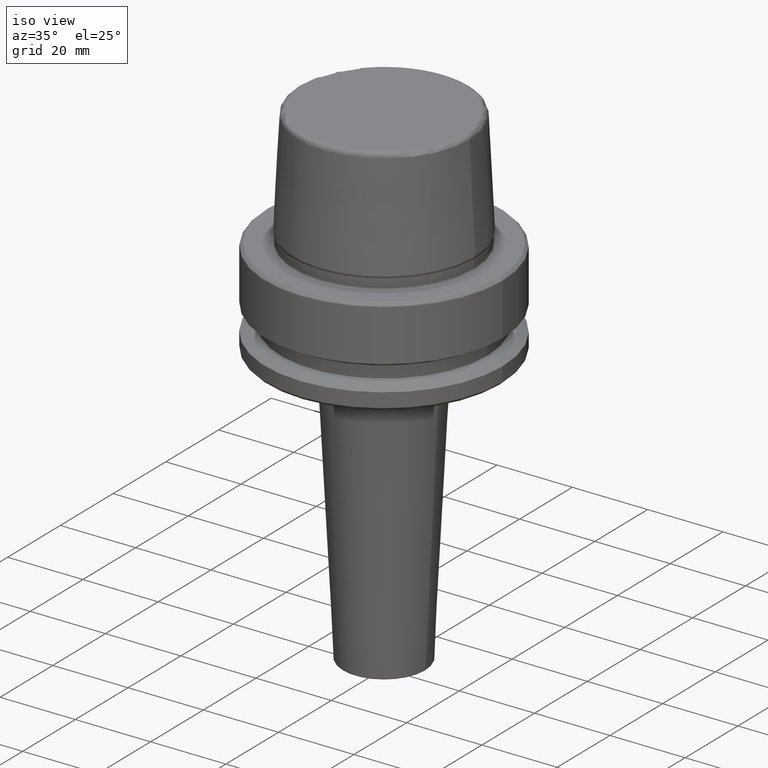
[diagram: clean part render]
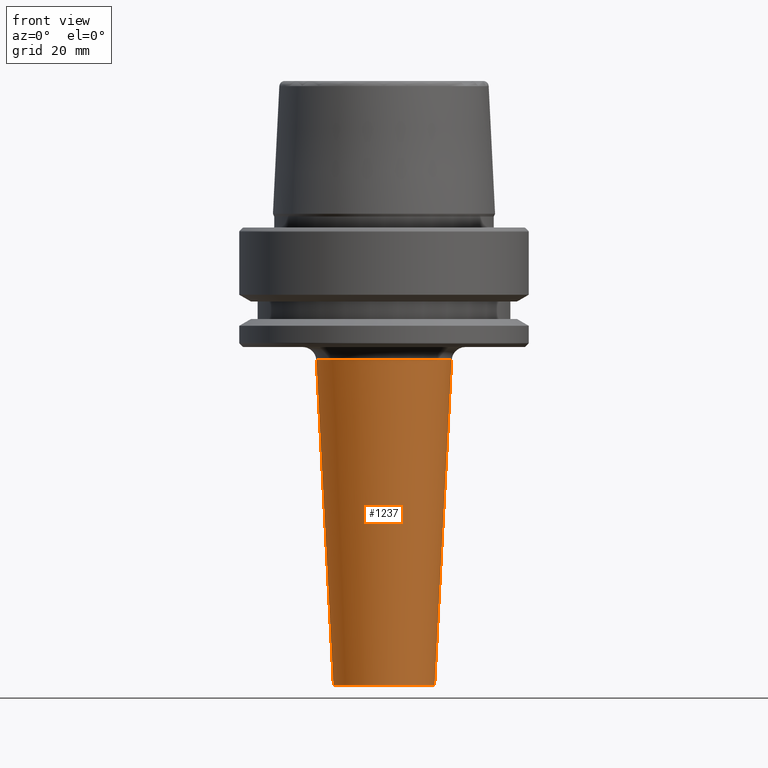
[diagram: tour spotlight — one face highlighted and labeled with its STEP entity id]
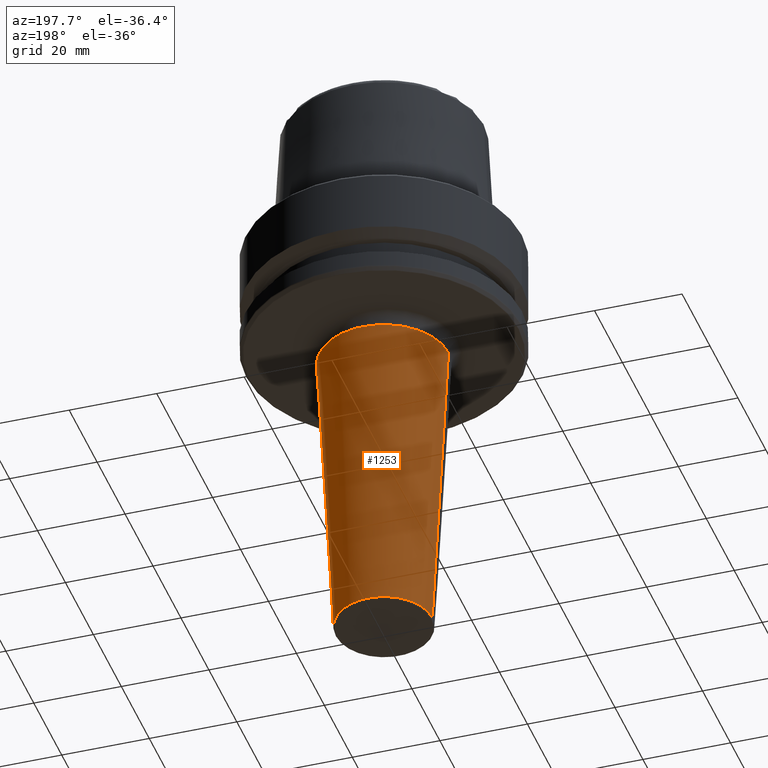
[diagram: tour spotlight — one face highlighted and labeled with its STEP entity id]
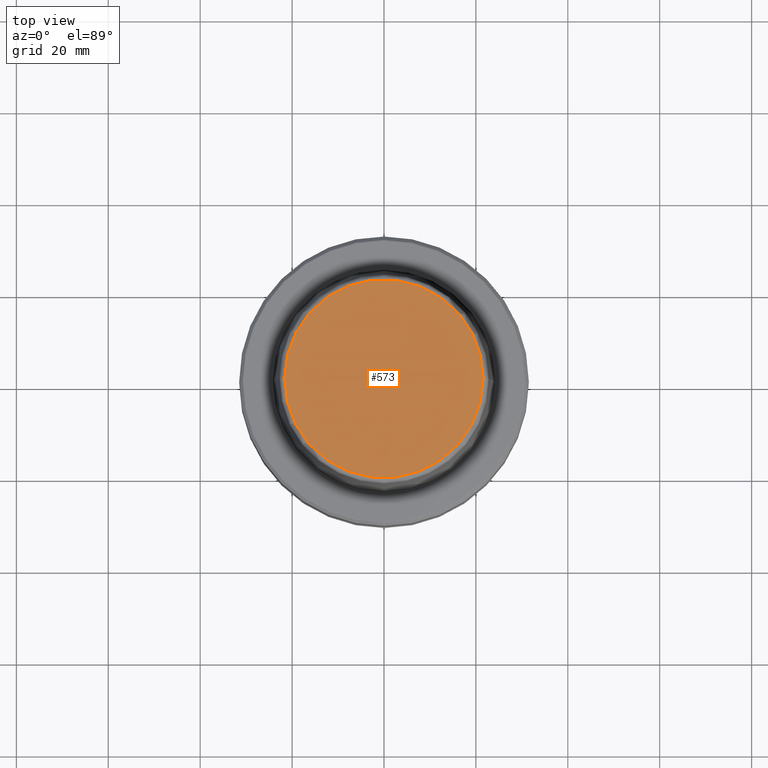
[diagram: tour spotlight — one face highlighted and labeled with its STEP entity id]
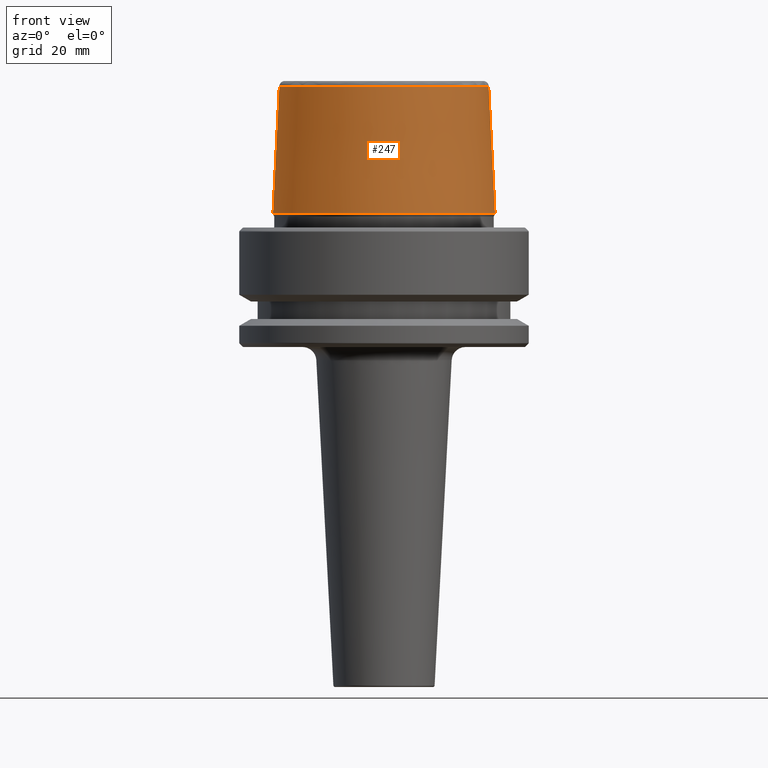
[diagram: tour spotlight — one face highlighted and labeled with its STEP entity id]
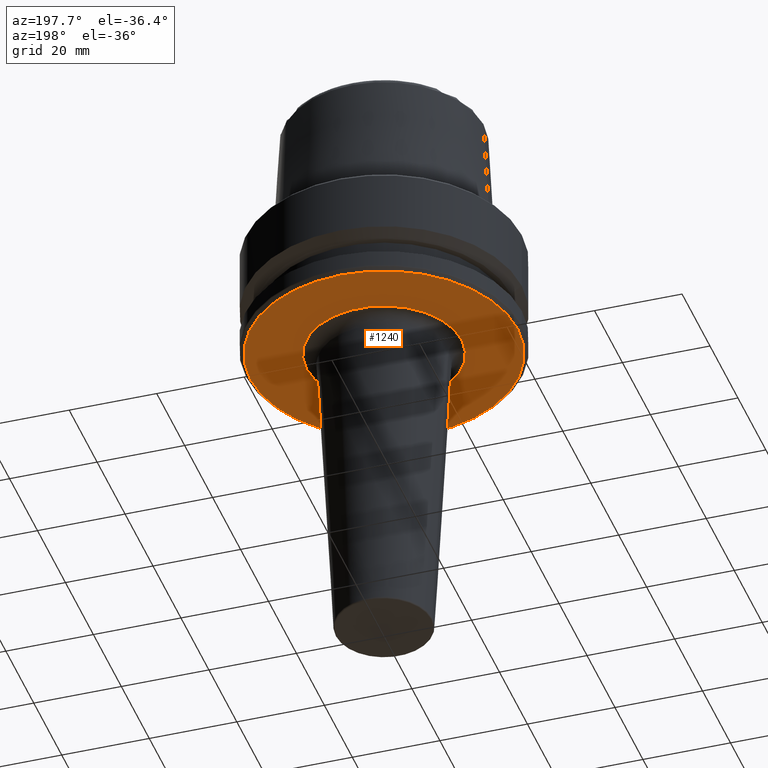
[diagram: tour spotlight — one face highlighted and labeled with its STEP entity id]
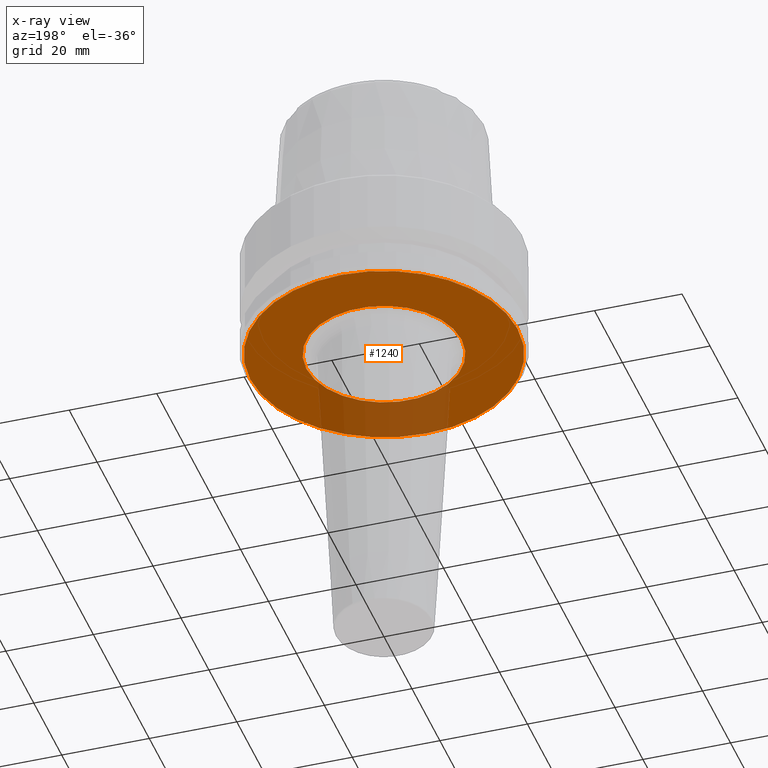
[diagram: x-ray of the same camera — body ghosted, this tour face saturated]
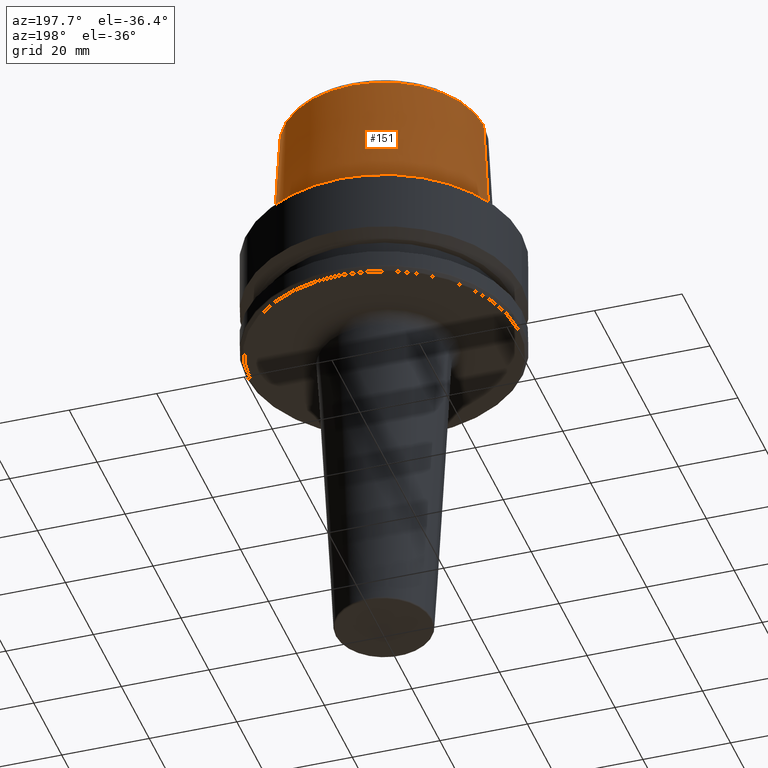
[diagram: tour spotlight — one face highlighted and labeled with its STEP entity id]
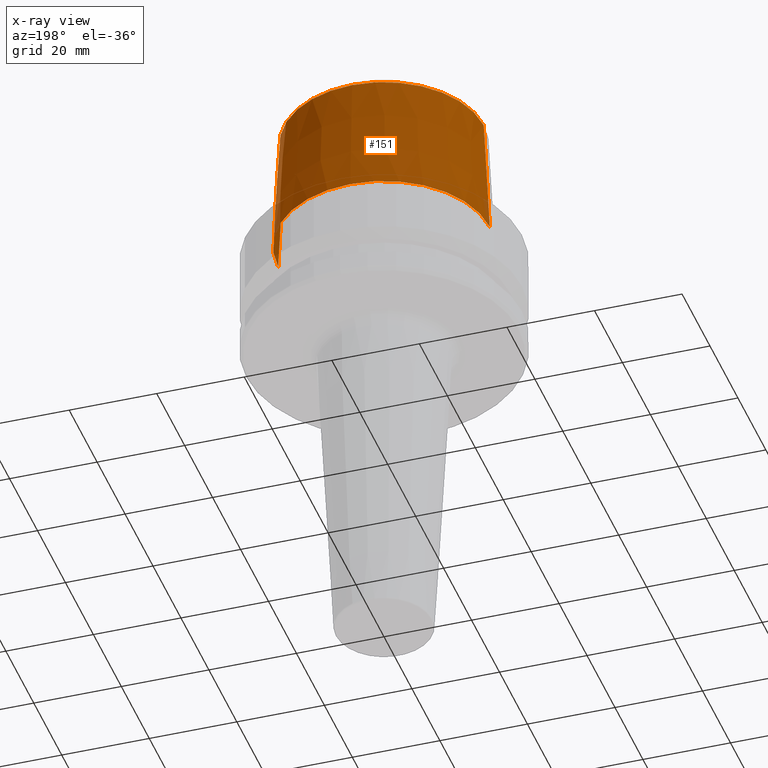
[diagram: x-ray of the same camera — body ghosted, this tour face saturated]
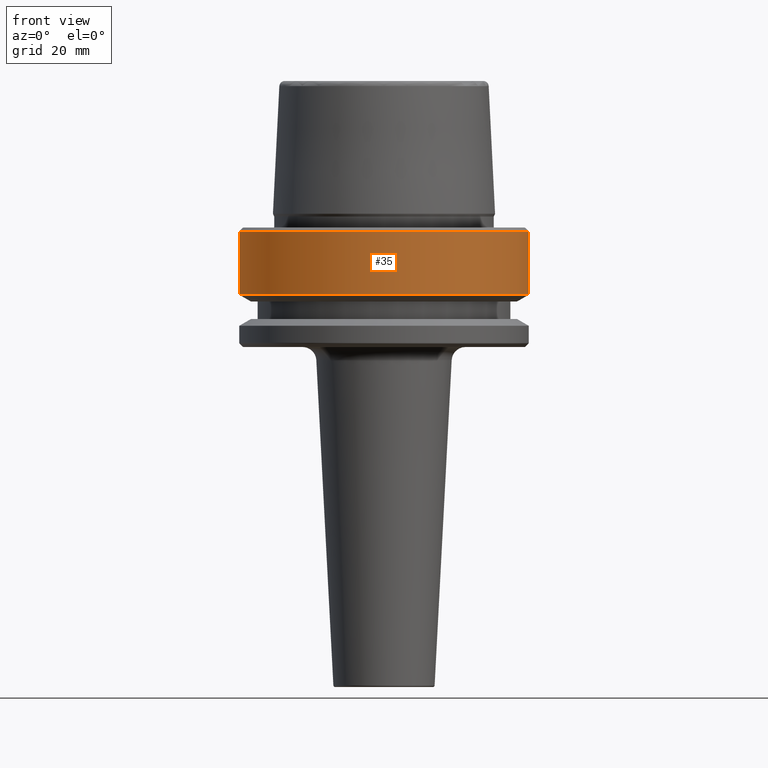
[diagram: tour spotlight — one face highlighted and labeled with its STEP entity id]
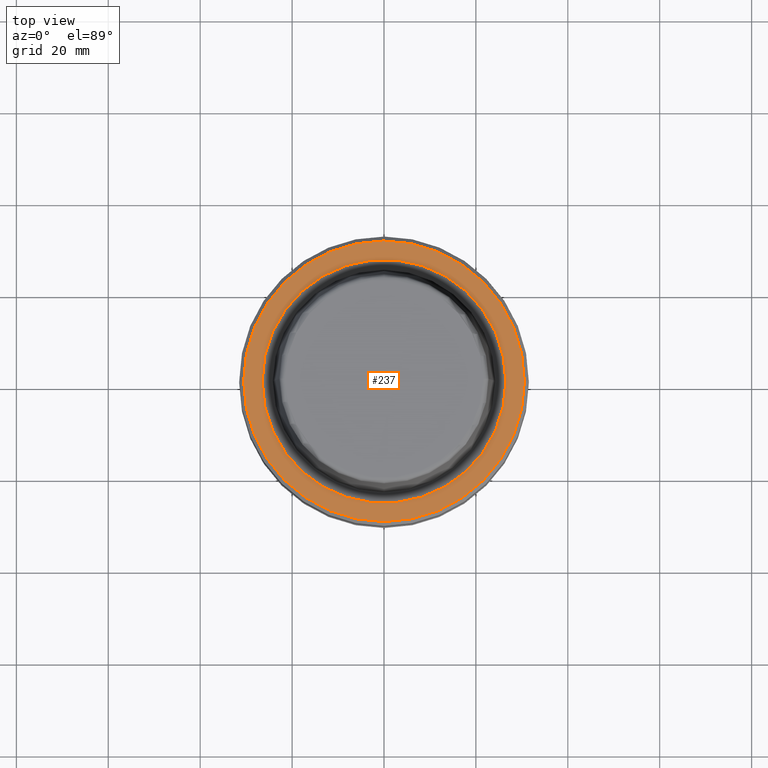
[diagram: tour spotlight — one face highlighted and labeled with its STEP entity id]
A machine part: a face-by-face anatomy tour. The part has 46 B-rep faces; the first image is the clean iso view, then the 8 largest visible faces are spotlighted one at a time (largest first), each with its STEP entity span.

Face 1 — front view, entity #1237. In plain terms, the highlighted conical surface has half-angle 3 deg.
Definition (entity closure, byte-faithful):
#3 = LINE ( 'NONE', #561, #451 ) ;
#9 = EDGE_LOOP ( 'NONE', ( #259, #390, #586, #384 ) ) ;
#24 = CARTESIAN_POINT ( 'NONE',  ( 0.0000000000000000000, 0.0000000000000000000, -99.62093438249719700 ) ) ;
#27 = CARTESIAN_POINT ( 'NONE',  ( 0.0000000000000000000, 0.0000000000000000000, -99.62093438249719700 ) ) ;
#57 = DIRECTION ( 'NONE',  ( 0.0000000000000000000, 0.0000000000000000000, -1.000000000000000000 ) ) ;
#180 = VECTOR ( 'NONE', #233, 1000.000000000000100 ) ;
#197 = DIRECTION ( 'NONE',  ( -0.0000000000000000000, -0.0000000000000000000, 1.000000000000000000 ) ) ;
#233 = DIRECTION ( 'NONE',  ( 0.05233595624294394600, 0.0000000000000000000, 0.9986295347545739400 ) ) ;
#239 = DIRECTION ( 'NONE',  ( 1.000000000000000000, 0.0000000000000000000, 0.0000000000000000000 ) ) ;
#255 = AXIS2_PLACEMENT_3D ( 'NONE', #27, #890, #1162 ) ;
#259 = ORIENTED_EDGE ( 'NONE', *, *, #306, .F. ) ;
#295 = CARTESIAN_POINT ( 'NONE',  ( 14.72918076282597600, 0.0000000000000000000, -28.84299213127116700 ) ) ;
#306 = EDGE_CURVE ( 'NONE', #1135, #471, #3, .T. ) ;
#332 = CONICAL_SURFACE ( 'NONE', #255, 11.01986598721587800, 0.05235987755982999400 ) ;
#334 = AXIS2_PLACEMENT_3D ( 'NONE', #24, #197, #239 ) ;
#384 = ORIENTED_EDGE ( 'NONE', *, *, #535, .T. ) ;
#390 = ORIENTED_EDGE ( 'NONE', *, *, #995, .T. ) ;
#407 = CARTESIAN_POINT ( 'NONE',  ( 11.01986598721587800, 0.0000000000000000000, -99.62093438249719700 ) ) ;
#419 = DIRECTION ( 'NONE',  ( -0.05233595624294394600, 6.409306129323724000E-018, 0.9986295347545739400 ) ) ;
#424 = CIRCLE ( 'NONE', #617, 14.72918076282597800 ) ;
#451 = VECTOR ( 'NONE', #419, 1000.000000000000100 ) ;
#464 = CARTESIAN_POINT ( 'NONE',  ( 0.0000000000000000000, 0.0000000000000000000, -28.84299213127116700 ) ) ;
#468 = CARTESIAN_POINT ( 'NONE',  ( -14.72918076282597600, 1.803804407525760100E-015, -28.84299213127116700 ) ) ;
#471 = VERTEX_POINT ( 'NONE', #468 ) ;
#524 = FACE_OUTER_BOUND ( 'NONE', #9, .T. ) ;
#535 = EDGE_CURVE ( 'NONE', #1074, #471, #424, .T. ) ;
#561 = CARTESIAN_POINT ( 'NONE',  ( -11.01986598721587800, 1.349544360827671300E-015, -99.62093438249719700 ) ) ;
#586 = ORIENTED_EDGE ( 'NONE', *, *, #961, .T. ) ;
#608 = CARTESIAN_POINT ( 'NONE',  ( -11.01986598721587800, 1.349544360827671300E-015, -99.62093438249719700 ) ) ;
#617 = AXIS2_PLACEMENT_3D ( 'NONE', #464, #57, #648 ) ;
#648 = DIRECTION ( 'NONE',  ( 1.000000000000000000, 0.0000000000000000000, 0.0000000000000000000 ) ) ;
#818 = CIRCLE ( 'NONE', #334, 11.01986598721587800 ) ;
#890 = DIRECTION ( 'NONE',  ( -0.0000000000000000000, -0.0000000000000000000, 1.000000000000000000 ) ) ;
#961 = EDGE_CURVE ( 'NONE', #1243, #1074, #1006, .T. ) ;
#995 = EDGE_CURVE ( 'NONE', #1135, #1243, #818, .T. ) ;
#1006 = LINE ( 'NONE', #1045, #180 ) ;
#1045 = CARTESIAN_POINT ( 'NONE',  ( 11.01986598721587800, 0.0000000000000000000, -99.62093438249719700 ) ) ;
#1074 = VERTEX_POINT ( 'NONE', #295 ) ;
#1135 = VERTEX_POINT ( 'NONE', #608 ) ;
#1162 = DIRECTION ( 'NONE',  ( 1.000000000000000000, 0.0000000000000000000, 0.0000000000000000000 ) ) ;
#1237 = ADVANCED_FACE ( 'NONE', ( #524 ), #332, .T. ) ;
#1243 = VERTEX_POINT ( 'NONE', #407 ) ;

Face 2 — auxiliary view, entity #1253. In plain terms, the highlighted conical surface has half-angle 3 deg.
Definition (entity closure, byte-faithful):
#3 = LINE ( 'NONE', #561, #451 ) ;
#48 = EDGE_CURVE ( 'NONE', #471, #1074, #566, .T. ) ;
#93 = DIRECTION ( 'NONE',  ( 1.000000000000000000, 0.0000000000000000000, 0.0000000000000000000 ) ) ;
#180 = VECTOR ( 'NONE', #233, 1000.000000000000100 ) ;
#233 = DIRECTION ( 'NONE',  ( 0.05233595624294394600, 0.0000000000000000000, 0.9986295347545739400 ) ) ;
#295 = CARTESIAN_POINT ( 'NONE',  ( 14.72918076282597600, 0.0000000000000000000, -28.84299213127116700 ) ) ;
#306 = EDGE_CURVE ( 'NONE', #1135, #471, #3, .T. ) ;
#320 = DIRECTION ( 'NONE',  ( 1.000000000000000000, 0.0000000000000000000, 0.0000000000000000000 ) ) ;
#365 = CIRCLE ( 'NONE', #665, 11.01986598721587800 ) ;
#373 = DIRECTION ( 'NONE',  ( 1.000000000000000000, 0.0000000000000000000, 0.0000000000000000000 ) ) ;
#387 = EDGE_CURVE ( 'NONE', #1243, #1135, #365, .T. ) ;
#400 = CARTESIAN_POINT ( 'NONE',  ( 0.0000000000000000000, 0.0000000000000000000, -99.62093438249719700 ) ) ;
#407 = CARTESIAN_POINT ( 'NONE',  ( 11.01986598721587800, 0.0000000000000000000, -99.62093438249719700 ) ) ;
#411 = DIRECTION ( 'NONE',  ( -0.0000000000000000000, -0.0000000000000000000, 1.000000000000000000 ) ) ;
#419 = DIRECTION ( 'NONE',  ( -0.05233595624294394600, 6.409306129323724000E-018, 0.9986295347545739400 ) ) ;
#436 = ORIENTED_EDGE ( 'NONE', *, *, #48, .T. ) ;
#451 = VECTOR ( 'NONE', #419, 1000.000000000000100 ) ;
#468 = CARTESIAN_POINT ( 'NONE',  ( -14.72918076282597600, 1.803804407525760100E-015, -28.84299213127116700 ) ) ;
#471 = VERTEX_POINT ( 'NONE', #468 ) ;
#497 = ORIENTED_EDGE ( 'NONE', *, *, #306, .T. ) ;
#508 = AXIS2_PLACEMENT_3D ( 'NONE', #596, #934, #373 ) ;
#561 = CARTESIAN_POINT ( 'NONE',  ( -11.01986598721587800, 1.349544360827671300E-015, -99.62093438249719700 ) ) ;
#566 = CIRCLE ( 'NONE', #508, 14.72918076282597800 ) ;
#596 = CARTESIAN_POINT ( 'NONE',  ( 0.0000000000000000000, 0.0000000000000000000, -28.84299213127116700 ) ) ;
#608 = CARTESIAN_POINT ( 'NONE',  ( -11.01986598721587800, 1.349544360827671300E-015, -99.62093438249719700 ) ) ;
#623 = CARTESIAN_POINT ( 'NONE',  ( 0.0000000000000000000, 0.0000000000000000000, -99.62093438249719700 ) ) ;
#665 = AXIS2_PLACEMENT_3D ( 'NONE', #623, #771, #93 ) ;
#771 = DIRECTION ( 'NONE',  ( -0.0000000000000000000, -0.0000000000000000000, 1.000000000000000000 ) ) ;
#845 = ORIENTED_EDGE ( 'NONE', *, *, #387, .T. ) ;
#934 = DIRECTION ( 'NONE',  ( 0.0000000000000000000, 0.0000000000000000000, -1.000000000000000000 ) ) ;
#961 = EDGE_CURVE ( 'NONE', #1243, #1074, #1006, .T. ) ;
#980 = CONICAL_SURFACE ( 'NONE', #1238, 11.01986598721587800, 0.05235987755982999400 ) ;
#1006 = LINE ( 'NONE', #1045, #180 ) ;
#1045 = CARTESIAN_POINT ( 'NONE',  ( 11.01986598721587800, 0.0000000000000000000, -99.62093438249719700 ) ) ;
#1074 = VERTEX_POINT ( 'NONE', #295 ) ;
#1135 = VERTEX_POINT ( 'NONE', #608 ) ;
#1137 = EDGE_LOOP ( 'NONE', ( #845, #497, #436, #1169 ) ) ;
#1169 = ORIENTED_EDGE ( 'NONE', *, *, #961, .F. ) ;
#1175 = FACE_OUTER_BOUND ( 'NONE', #1137, .T. ) ;
#1238 = AXIS2_PLACEMENT_3D ( 'NONE', #400, #411, #320 ) ;
#1243 = VERTEX_POINT ( 'NONE', #407 ) ;
#1253 = ADVANCED_FACE ( 'NONE', ( #1175 ), #980, .T. ) ;

Face 3 — top view, entity #573. In plain terms, the highlighted planar face has unit normal (0, 0, -1).
Definition (entity closure, byte-faithful):
#68 = DIRECTION ( 'NONE',  ( 0.0000000000000000000, 0.0000000000000000000, -1.000000000000000000 ) ) ;
#184 = AXIS2_PLACEMENT_3D ( 'NONE', #678, #844, #1078 ) ;
#217 = AXIS2_PLACEMENT_3D ( 'NONE', #758, #68, #856 ) ;
#228 = CARTESIAN_POINT ( 'NONE',  ( 21.58108272732117100, 0.0000000000000000000, 31.89999999999999900 ) ) ;
#322 = AXIS2_PLACEMENT_3D ( 'NONE', #556, #659, #1224 ) ;
#327 = ORIENTED_EDGE ( 'NONE', *, *, #1141, .T. ) ;
#377 = VERTEX_POINT ( 'NONE', #228 ) ;
#488 = CIRCLE ( 'NONE', #184, 21.58108272732117100 ) ;
#556 = CARTESIAN_POINT ( 'NONE',  ( 0.0000000000000000000, 0.0000000000000000000, 31.89999999999999900 ) ) ;
#573 = ADVANCED_FACE ( 'NONE', ( #1246 ), #1223, .F. ) ;
#602 = EDGE_CURVE ( 'NONE', #377, #1071, #813, .T. ) ;
#659 = DIRECTION ( 'NONE',  ( -0.0000000000000000000, -0.0000000000000000000, 1.000000000000000000 ) ) ;
#673 = EDGE_LOOP ( 'NONE', ( #1171, #327 ) ) ;
#678 = CARTESIAN_POINT ( 'NONE',  ( 0.0000000000000000000, 0.0000000000000000000, 31.89999999999999900 ) ) ;
#758 = CARTESIAN_POINT ( 'NONE',  ( 0.0000000000000000000, 0.0000000000000000000, 31.89999999999999900 ) ) ;
#813 = CIRCLE ( 'NONE', #322, 21.58108272732117100 ) ;
#844 = DIRECTION ( 'NONE',  ( -0.0000000000000000000, -0.0000000000000000000, 1.000000000000000000 ) ) ;
#856 = DIRECTION ( 'NONE',  ( -1.000000000000000000, 0.0000000000000000000, -0.0000000000000000000 ) ) ;
#1071 = VERTEX_POINT ( 'NONE', #1114 ) ;
#1078 = DIRECTION ( 'NONE',  ( 1.000000000000000000, 0.0000000000000000000, 0.0000000000000000000 ) ) ;
#1114 = CARTESIAN_POINT ( 'NONE',  ( -21.58108272732117100, 2.716307157494421400E-015, 31.89999999999999900 ) ) ;
#1141 = EDGE_CURVE ( 'NONE', #1071, #377, #488, .T. ) ;
#1171 = ORIENTED_EDGE ( 'NONE', *, *, #602, .T. ) ;
#1223 = PLANE ( 'NONE',  #217 ) ;
#1224 = DIRECTION ( 'NONE',  ( 1.000000000000000000, 0.0000000000000000000, 0.0000000000000000000 ) ) ;
#1246 = FACE_OUTER_BOUND ( 'NONE', #673, .T. ) ;

Face 4 — front view, entity #247. In plain terms, the highlighted conical surface has half-angle 2.868 deg.
Definition (entity closure, byte-faithful):
#18 = DIRECTION ( 'NONE',  ( -0.05003611051310812000, 0.0000000000000000000, -0.9987474093306675200 ) ) ;
#117 = ORIENTED_EDGE ( 'NONE', *, *, #426, .T. ) ;
#141 = DIRECTION ( 'NONE',  ( 1.000000000000000000, 0.0000000000000000000, 0.0000000000000000000 ) ) ;
#222 = LINE ( 'NONE', #1075, #371 ) ;
#236 = DIRECTION ( 'NONE',  ( 1.000000000000000000, 0.0000000000000000000, 0.0000000000000000000 ) ) ;
#242 = CARTESIAN_POINT ( 'NONE',  ( -22.77957961851797100, 0.0000000000000000000, 30.76004333261571900 ) ) ;
#247 = ADVANCED_FACE ( 'NONE', ( #988 ), #1050, .T. ) ;
#257 = VERTEX_POINT ( 'NONE', #652 ) ;
#292 = DIRECTION ( 'NONE',  ( -1.000000000000000000, 0.0000000000000000000, 0.0000000000000000000 ) ) ;
#310 = VERTEX_POINT ( 'NONE', #242 ) ;
#346 = AXIS2_PLACEMENT_3D ( 'NONE', #603, #1164, #141 ) ;
#364 = DIRECTION ( 'NONE',  ( -0.0000000000000000000, -0.0000000000000000000, 1.000000000000000000 ) ) ;
#371 = VECTOR ( 'NONE', #997, 1000.000000000000200 ) ;
#379 = EDGE_CURVE ( 'NONE', #310, #257, #974, .T. ) ;
#393 = ORIENTED_EDGE ( 'NONE', *, *, #379, .F. ) ;
#408 = CIRCLE ( 'NONE', #346, 24.17032625081241900 ) ;
#426 = EDGE_CURVE ( 'NONE', #310, #1153, #459, .T. ) ;
#452 = EDGE_LOOP ( 'NONE', ( #1188, #393, #117, #1139 ) ) ;
#459 = LINE ( 'NONE', #503, #1086 ) ;
#467 = VERTEX_POINT ( 'NONE', #851 ) ;
#495 = CARTESIAN_POINT ( 'NONE',  ( -24.17032625081241900, 2.960011267740467600E-015, 3.000000000000002700 ) ) ;
#503 = CARTESIAN_POINT ( 'NONE',  ( -24.17032625081241900, 0.0000000000000000000, 3.000000000000002700 ) ) ;
#534 = CARTESIAN_POINT ( 'NONE',  ( 0.0000000000000000000, 0.0000000000000000000, 30.76004333261571900 ) ) ;
#572 = CARTESIAN_POINT ( 'NONE',  ( 0.0000000000000000000, 0.0000000000000000000, 3.000000000000002700 ) ) ;
#603 = CARTESIAN_POINT ( 'NONE',  ( 0.0000000000000000000, 0.0000000000000000000, 3.000000000000002700 ) ) ;
#604 = AXIS2_PLACEMENT_3D ( 'NONE', #534, #364, #236 ) ;
#647 = EDGE_CURVE ( 'NONE', #1153, #467, #408, .T. ) ;
#652 = CARTESIAN_POINT ( 'NONE',  ( 22.77957961851797100, 2.874852597157249900E-015, 30.76004333261571900 ) ) ;
#851 = CARTESIAN_POINT ( 'NONE',  ( 24.17032625081241900, 0.0000000000000000000, 3.000000000000002700 ) ) ;
#865 = EDGE_CURVE ( 'NONE', #257, #467, #222, .T. ) ;
#866 = AXIS2_PLACEMENT_3D ( 'NONE', #572, #1183, #292 ) ;
#974 = CIRCLE ( 'NONE', #604, 22.77957961851797100 ) ;
#988 = FACE_OUTER_BOUND ( 'NONE', #452, .T. ) ;
#997 = DIRECTION ( 'NONE',  ( 0.05003611051310812000, 6.127656258166108900E-018, -0.9987474093306675200 ) ) ;
#1050 = CONICAL_SURFACE ( 'NONE', #866, 24.17032625081241900, 0.05005701257456005000 ) ;
#1075 = CARTESIAN_POINT ( 'NONE',  ( 24.17032625081241900, 2.960011267740467600E-015, 3.000000000000002700 ) ) ;
#1086 = VECTOR ( 'NONE', #18, 1000.000000000000200 ) ;
#1139 = ORIENTED_EDGE ( 'NONE', *, *, #647, .T. ) ;
#1153 = VERTEX_POINT ( 'NONE', #495 ) ;
#1164 = DIRECTION ( 'NONE',  ( -0.0000000000000000000, -0.0000000000000000000, 1.000000000000000000 ) ) ;
#1183 = DIRECTION ( 'NONE',  ( 0.0000000000000000000, 0.0000000000000000000, -1.000000000000000000 ) ) ;
#1188 = ORIENTED_EDGE ( 'NONE', *, *, #865, .F. ) ;

Face 5 — auxiliary view, entity #1240. An x-ray twin of the same camera follows (body ghosted, this face saturated) — the face is partly hidden behind the body. In plain terms, the highlighted planar face has unit normal (0, -0, 1).
Definition (entity closure, byte-faithful):
#55 = FACE_BOUND ( 'NONE', #329, .T. ) ;
#105 = DIRECTION ( 'NONE',  ( 1.000000000000000000, 0.0000000000000000000, 0.0000000000000000000 ) ) ;
#115 = ORIENTED_EDGE ( 'NONE', *, *, #968, .F. ) ;
#136 = AXIS2_PLACEMENT_3D ( 'NONE', #809, #315, #932 ) ;
#188 = ORIENTED_EDGE ( 'NONE', *, *, #956, .T. ) ;
#208 = CIRCLE ( 'NONE', #765, 17.72506936708969900 ) ;
#283 = ORIENTED_EDGE ( 'NONE', *, *, #773, .F. ) ;
#315 = DIRECTION ( 'NONE',  ( -0.0000000000000000000, -0.0000000000000000000, 1.000000000000000000 ) ) ;
#329 = EDGE_LOOP ( 'NONE', ( #188, #687 ) ) ;
#341 = DIRECTION ( 'NONE',  ( 1.000000000000000000, 0.0000000000000000000, 0.0000000000000000000 ) ) ;
#403 = VERTEX_POINT ( 'NONE', #677 ) ;
#438 = VERTEX_POINT ( 'NONE', #680 ) ;
#517 = CARTESIAN_POINT ( 'NONE',  ( 0.0000000000000000000, 30.53431457505076800, -26.00000000000000700 ) ) ;
#550 = EDGE_CURVE ( 'NONE', #599, #403, #208, .T. ) ;
#551 = FACE_OUTER_BOUND ( 'NONE', #1152, .T. ) ;
#571 = CARTESIAN_POINT ( 'NONE',  ( -17.72506936708969900, 2.170694946507120400E-015, -26.00000000000000400 ) ) ;
#577 = CARTESIAN_POINT ( 'NONE',  ( 0.0000000000000000000, 0.0000000000000000000, -26.00000000000000700 ) ) ;
#579 = DIRECTION ( 'NONE',  ( -0.0000000000000000000, -0.0000000000000000000, 1.000000000000000000 ) ) ;
#599 = VERTEX_POINT ( 'NONE', #571 ) ;
#633 = VERTEX_POINT ( 'NONE', #1117 ) ;
#677 = CARTESIAN_POINT ( 'NONE',  ( 17.72506936708969900, 0.0000000000000000000, -26.00000000000000400 ) ) ;
#680 = CARTESIAN_POINT ( 'NONE',  ( 30.53431457505076800, 0.0000000000000000000, -26.00000000000001100 ) ) ;
#687 = ORIENTED_EDGE ( 'NONE', *, *, #550, .T. ) ;
#722 = CARTESIAN_POINT ( 'NONE',  ( 0.0000000000000000000, 0.0000000000000000000, -26.00000000000000700 ) ) ;
#743 = DIRECTION ( 'NONE',  ( 0.0000000000000000000, -0.0000000000000000000, 1.000000000000000000 ) ) ;
#752 = DIRECTION ( 'NONE',  ( 1.000000000000000000, 0.0000000000000000000, 0.0000000000000000000 ) ) ;
#765 = AXIS2_PLACEMENT_3D ( 'NONE', #577, #1134, #752 ) ;
#773 = EDGE_CURVE ( 'NONE', #438, #633, #940, .T. ) ;
#798 = AXIS2_PLACEMENT_3D ( 'NONE', #722, #807, #823 ) ;
#803 = CARTESIAN_POINT ( 'NONE',  ( 0.0000000000000000000, 0.0000000000000000000, -26.00000000000001100 ) ) ;
#807 = DIRECTION ( 'NONE',  ( -0.0000000000000000000, -0.0000000000000000000, 1.000000000000000000 ) ) ;
#809 = CARTESIAN_POINT ( 'NONE',  ( 0.0000000000000000000, 0.0000000000000000000, -26.00000000000001100 ) ) ;
#823 = DIRECTION ( 'NONE',  ( 1.000000000000000000, 0.0000000000000000000, 0.0000000000000000000 ) ) ;
#932 = DIRECTION ( 'NONE',  ( 1.000000000000000000, 0.0000000000000000000, 0.0000000000000000000 ) ) ;
#940 = CIRCLE ( 'NONE', #136, 30.53431457505076800 ) ;
#956 = EDGE_CURVE ( 'NONE', #403, #599, #1209, .T. ) ;
#968 = EDGE_CURVE ( 'NONE', #633, #438, #1061, .T. ) ;
#1036 = AXIS2_PLACEMENT_3D ( 'NONE', #517, #743, #105 ) ;
#1061 = CIRCLE ( 'NONE', #1166, 30.53431457505076800 ) ;
#1064 = PLANE ( 'NONE',  #1036 ) ;
#1117 = CARTESIAN_POINT ( 'NONE',  ( -30.53431457505076800, 3.756694181974139400E-015, -26.00000000000001100 ) ) ;
#1134 = DIRECTION ( 'NONE',  ( -0.0000000000000000000, -0.0000000000000000000, 1.000000000000000000 ) ) ;
#1152 = EDGE_LOOP ( 'NONE', ( #283, #115 ) ) ;
#1166 = AXIS2_PLACEMENT_3D ( 'NONE', #803, #579, #341 ) ;
#1209 = CIRCLE ( 'NONE', #798, 17.72506936708969900 ) ;
#1240 = ADVANCED_FACE ( 'NONE', ( #55, #551 ), #1064, .F. ) ;

Face 6 — auxiliary view, entity #151. An x-ray twin of the same camera follows (body ghosted, this face saturated) — the face is partly hidden behind the body. In plain terms, the highlighted conical surface has half-angle 2.868 deg.
Definition (entity closure, byte-faithful):
#18 = DIRECTION ( 'NONE',  ( -0.05003611051310812000, 0.0000000000000000000, -0.9987474093306675200 ) ) ;
#50 = CARTESIAN_POINT ( 'NONE',  ( 0.0000000000000000000, 0.0000000000000000000, 3.000000000000002700 ) ) ;
#151 = ADVANCED_FACE ( 'NONE', ( #627 ), #943, .T. ) ;
#169 = CIRCLE ( 'NONE', #729, 22.77957961851797100 ) ;
#177 = AXIS2_PLACEMENT_3D ( 'NONE', #50, #723, #183 ) ;
#183 = DIRECTION ( 'NONE',  ( -1.000000000000000000, 0.0000000000000000000, 0.0000000000000000000 ) ) ;
#205 = ORIENTED_EDGE ( 'NONE', *, *, #463, .T. ) ;
#222 = LINE ( 'NONE', #1075, #371 ) ;
#242 = CARTESIAN_POINT ( 'NONE',  ( -22.77957961851797100, 0.0000000000000000000, 30.76004333261571900 ) ) ;
#257 = VERTEX_POINT ( 'NONE', #652 ) ;
#294 = ORIENTED_EDGE ( 'NONE', *, *, #395, .F. ) ;
#310 = VERTEX_POINT ( 'NONE', #242 ) ;
#354 = CIRCLE ( 'NONE', #1161, 24.17032625081241900 ) ;
#371 = VECTOR ( 'NONE', #997, 1000.000000000000200 ) ;
#395 = EDGE_CURVE ( 'NONE', #257, #310, #169, .T. ) ;
#397 = CARTESIAN_POINT ( 'NONE',  ( 0.0000000000000000000, 0.0000000000000000000, 30.76004333261571900 ) ) ;
#426 = EDGE_CURVE ( 'NONE', #310, #1153, #459, .T. ) ;
#459 = LINE ( 'NONE', #503, #1086 ) ;
#463 = EDGE_CURVE ( 'NONE', #467, #1153, #354, .T. ) ;
#467 = VERTEX_POINT ( 'NONE', #851 ) ;
#495 = CARTESIAN_POINT ( 'NONE',  ( -24.17032625081241900, 2.960011267740467600E-015, 3.000000000000002700 ) ) ;
#503 = CARTESIAN_POINT ( 'NONE',  ( -24.17032625081241900, 0.0000000000000000000, 3.000000000000002700 ) ) ;
#519 = DIRECTION ( 'NONE',  ( -0.0000000000000000000, -0.0000000000000000000, 1.000000000000000000 ) ) ;
#520 = EDGE_LOOP ( 'NONE', ( #294, #1029, #205, #966 ) ) ;
#552 = DIRECTION ( 'NONE',  ( -0.0000000000000000000, -0.0000000000000000000, 1.000000000000000000 ) ) ;
#627 = FACE_OUTER_BOUND ( 'NONE', #520, .T. ) ;
#652 = CARTESIAN_POINT ( 'NONE',  ( 22.77957961851797100, 2.874852597157249900E-015, 30.76004333261571900 ) ) ;
#723 = DIRECTION ( 'NONE',  ( 0.0000000000000000000, 0.0000000000000000000, -1.000000000000000000 ) ) ;
#729 = AXIS2_PLACEMENT_3D ( 'NONE', #397, #519, #1212 ) ;
#770 = DIRECTION ( 'NONE',  ( 1.000000000000000000, 0.0000000000000000000, 0.0000000000000000000 ) ) ;
#851 = CARTESIAN_POINT ( 'NONE',  ( 24.17032625081241900, 0.0000000000000000000, 3.000000000000002700 ) ) ;
#865 = EDGE_CURVE ( 'NONE', #257, #467, #222, .T. ) ;
#943 = CONICAL_SURFACE ( 'NONE', #177, 24.17032625081241900, 0.05005701257456005000 ) ;
#966 = ORIENTED_EDGE ( 'NONE', *, *, #426, .F. ) ;
#997 = DIRECTION ( 'NONE',  ( 0.05003611051310812000, 6.127656258166108900E-018, -0.9987474093306675200 ) ) ;
#1029 = ORIENTED_EDGE ( 'NONE', *, *, #865, .T. ) ;
#1075 = CARTESIAN_POINT ( 'NONE',  ( 24.17032625081241900, 2.960011267740467600E-015, 3.000000000000002700 ) ) ;
#1086 = VECTOR ( 'NONE', #18, 1000.000000000000200 ) ;
#1153 = VERTEX_POINT ( 'NONE', #495 ) ;
#1161 = AXIS2_PLACEMENT_3D ( 'NONE', #1218, #552, #770 ) ;
#1212 = DIRECTION ( 'NONE',  ( 1.000000000000000000, 0.0000000000000000000, 0.0000000000000000000 ) ) ;
#1218 = CARTESIAN_POINT ( 'NONE',  ( 0.0000000000000000000, 0.0000000000000000000, 3.000000000000002700 ) ) ;

Face 7 — front view, entity #35. In plain terms, the highlighted cylindrical surface (partial cylindrical patch) has radius 31.5 mm, axis along (-0, -0, 1).
Definition (entity closure, byte-faithful):
#30 = ORIENTED_EDGE ( 'NONE', *, *, #726, .T. ) ;
#35 = ADVANCED_FACE ( 'NONE', ( #952 ), #841, .T. ) ;
#65 = VECTOR ( 'NONE', #111, 1000.000000000000000 ) ;
#78 = VERTEX_POINT ( 'NONE', #736 ) ;
#96 = CARTESIAN_POINT ( 'NONE',  ( -31.50000000000000000, 3.857637417314162700E-015, -14.62250092524070100 ) ) ;
#111 = DIRECTION ( 'NONE',  ( -0.0000000000000000000, -0.0000000000000000000, 1.000000000000000000 ) ) ;
#116 = CARTESIAN_POINT ( 'NONE',  ( -31.50000000000000000, 3.857637417314162700E-015, 78.96908074195309300 ) ) ;
#166 = EDGE_CURVE ( 'NONE', #1157, #78, #1054, .T. ) ;
#210 = DIRECTION ( 'NONE',  ( -0.0000000000000000000, -0.0000000000000000000, 1.000000000000000000 ) ) ;
#224 = CARTESIAN_POINT ( 'NONE',  ( 31.50000000000000000, 0.0000000000000000000, 78.96908074195309300 ) ) ;
#230 = CIRCLE ( 'NONE', #1109, 31.50000000000000000 ) ;
#349 = ORIENTED_EDGE ( 'NONE', *, *, #166, .F. ) ;
#423 = CARTESIAN_POINT ( 'NONE',  ( 31.50000000000000700, 0.0000000000000000000, -0.9656854249492363700 ) ) ;
#494 = EDGE_LOOP ( 'NONE', ( #349, #512, #30, #1017 ) ) ;
#512 = ORIENTED_EDGE ( 'NONE', *, *, #1120, .T. ) ;
#568 = DIRECTION ( 'NONE',  ( 1.000000000000000000, 0.0000000000000000000, 0.0000000000000000000 ) ) ;
#576 = EDGE_CURVE ( 'NONE', #78, #857, #1204, .T. ) ;
#663 = CARTESIAN_POINT ( 'NONE',  ( 0.0000000000000000000, 0.0000000000000000000, -0.9656854249492363700 ) ) ;
#726 = EDGE_CURVE ( 'NONE', #1132, #857, #1007, .T. ) ;
#736 = CARTESIAN_POINT ( 'NONE',  ( -31.50000000000000700, 3.857637417314163500E-015, -0.9656854249492363700 ) ) ;
#753 = DIRECTION ( 'NONE',  ( 1.000000000000000000, 0.0000000000000000000, 0.0000000000000000000 ) ) ;
#756 = DIRECTION ( 'NONE',  ( -0.0000000000000000000, -0.0000000000000000000, 1.000000000000000000 ) ) ;
#784 = DIRECTION ( 'NONE',  ( -0.0000000000000000000, -0.0000000000000000000, 1.000000000000000000 ) ) ;
#802 = CARTESIAN_POINT ( 'NONE',  ( 0.0000000000000000000, 0.0000000000000000000, -14.62250092524070100 ) ) ;
#841 = CYLINDRICAL_SURFACE ( 'NONE', #879, 31.50000000000000000 ) ;
#852 = CARTESIAN_POINT ( 'NONE',  ( 0.0000000000000000000, 0.0000000000000000000, 78.96908074195309300 ) ) ;
#857 = VERTEX_POINT ( 'NONE', #423 ) ;
#879 = AXIS2_PLACEMENT_3D ( 'NONE', #852, #784, #753 ) ;
#895 = DIRECTION ( 'NONE',  ( 1.000000000000000000, 0.0000000000000000000, 0.0000000000000000000 ) ) ;
#952 = FACE_OUTER_BOUND ( 'NONE', #494, .T. ) ;
#985 = CARTESIAN_POINT ( 'NONE',  ( 31.50000000000000000, 0.0000000000000000000, -14.62250092524070100 ) ) ;
#1007 = LINE ( 'NONE', #224, #65 ) ;
#1017 = ORIENTED_EDGE ( 'NONE', *, *, #576, .F. ) ;
#1054 = LINE ( 'NONE', #116, #1107 ) ;
#1107 = VECTOR ( 'NONE', #756, 1000.000000000000000 ) ;
#1109 = AXIS2_PLACEMENT_3D ( 'NONE', #802, #210, #895 ) ;
#1120 = EDGE_CURVE ( 'NONE', #1157, #1132, #230, .T. ) ;
#1132 = VERTEX_POINT ( 'NONE', #985 ) ;
#1157 = VERTEX_POINT ( 'NONE', #96 ) ;
#1204 = CIRCLE ( 'NONE', #1235, 31.50000000000000700 ) ;
#1227 = DIRECTION ( 'NONE',  ( -0.0000000000000000000, -0.0000000000000000000, 1.000000000000000000 ) ) ;
#1235 = AXIS2_PLACEMENT_3D ( 'NONE', #663, #1227, #568 ) ;

Face 8 — top view, entity #237. In plain terms, the highlighted planar face has unit normal (0, 0, -1).
Definition (entity closure, byte-faithful):
#26 = VERTEX_POINT ( 'NONE', #1219 ) ;
#31 = CARTESIAN_POINT ( 'NONE',  ( 0.0000000000000000000, 0.0000000000000000000, 0.0000000000000000000 ) ) ;
#44 = DIRECTION ( 'NONE',  ( 0.0000000000000000000, 0.0000000000000000000, -1.000000000000000000 ) ) ;
#110 = EDGE_CURVE ( 'NONE', #26, #1028, #926, .T. ) ;
#155 = PLANE ( 'NONE',  #982 ) ;
#237 = ADVANCED_FACE ( 'NONE', ( #594, #293 ), #155, .F. ) ;
#260 = DIRECTION ( 'NONE',  ( -0.0000000000000000000, -0.0000000000000000000, 1.000000000000000000 ) ) ;
#290 = DIRECTION ( 'NONE',  ( -0.0000000000000000000, -0.0000000000000000000, 1.000000000000000000 ) ) ;
#293 = FACE_OUTER_BOUND ( 'NONE', #701, .T. ) ;
#343 = CARTESIAN_POINT ( 'NONE',  ( 0.0000000000000000000, 0.0000000000000000000, 0.0000000000000000000 ) ) ;
#353 = ORIENTED_EDGE ( 'NONE', *, *, #922, .F. ) ;
#363 = AXIS2_PLACEMENT_3D ( 'NONE', #1103, #260, #935 ) ;
#427 = VERTEX_POINT ( 'NONE', #664 ) ;
#435 = DIRECTION ( 'NONE',  ( 1.000000000000000000, 0.0000000000000000000, 0.0000000000000000000 ) ) ;
#470 = CIRCLE ( 'NONE', #757, 30.53431457505076100 ) ;
#472 = CARTESIAN_POINT ( 'NONE',  ( 26.52499999999999900, 0.0000000000000000000, 0.0000000000000000000 ) ) ;
#545 = ORIENTED_EDGE ( 'NONE', *, *, #1070, .T. ) ;
#553 = DIRECTION ( 'NONE',  ( -0.0000000000000000000, -0.0000000000000000000, 1.000000000000000000 ) ) ;
#555 = AXIS2_PLACEMENT_3D ( 'NONE', #343, #290, #788 ) ;
#594 = FACE_BOUND ( 'NONE', #1214, .T. ) ;
#664 = CARTESIAN_POINT ( 'NONE',  ( -30.53431457505076100, 3.756694181974138600E-015, 0.0000000000000000000 ) ) ;
#684 = EDGE_CURVE ( 'NONE', #427, #1005, #470, .T. ) ;
#701 = EDGE_LOOP ( 'NONE', ( #545, #1184 ) ) ;
#728 = ORIENTED_EDGE ( 'NONE', *, *, #110, .F. ) ;
#733 = CIRCLE ( 'NONE', #780, 26.52499999999999900 ) ;
#757 = AXIS2_PLACEMENT_3D ( 'NONE', #914, #553, #1051 ) ;
#780 = AXIS2_PLACEMENT_3D ( 'NONE', #31, #1096, #435 ) ;
#788 = DIRECTION ( 'NONE',  ( 1.000000000000000000, 0.0000000000000000000, 0.0000000000000000000 ) ) ;
#910 = DIRECTION ( 'NONE',  ( -1.000000000000000000, 0.0000000000000000000, -0.0000000000000000000 ) ) ;
#914 = CARTESIAN_POINT ( 'NONE',  ( 0.0000000000000000000, 0.0000000000000000000, 0.0000000000000000000 ) ) ;
#920 = CARTESIAN_POINT ( 'NONE',  ( 30.53431457505076100, 0.0000000000000000000, 0.0000000000000000000 ) ) ;
#922 = EDGE_CURVE ( 'NONE', #1028, #26, #733, .T. ) ;
#926 = CIRCLE ( 'NONE', #363, 26.52499999999999900 ) ;
#935 = DIRECTION ( 'NONE',  ( 1.000000000000000000, 0.0000000000000000000, 0.0000000000000000000 ) ) ;
#982 = AXIS2_PLACEMENT_3D ( 'NONE', #1146, #44, #910 ) ;
#1005 = VERTEX_POINT ( 'NONE', #920 ) ;
#1028 = VERTEX_POINT ( 'NONE', #472 ) ;
#1051 = DIRECTION ( 'NONE',  ( 1.000000000000000000, 0.0000000000000000000, 0.0000000000000000000 ) ) ;
#1070 = EDGE_CURVE ( 'NONE', #1005, #427, #1115, .T. ) ;
#1096 = DIRECTION ( 'NONE',  ( -0.0000000000000000000, -0.0000000000000000000, 1.000000000000000000 ) ) ;
#1103 = CARTESIAN_POINT ( 'NONE',  ( 0.0000000000000000000, 0.0000000000000000000, 0.0000000000000000000 ) ) ;
#1115 = CIRCLE ( 'NONE', #555, 30.53431457505076100 ) ;
#1146 = CARTESIAN_POINT ( 'NONE',  ( 0.0000000000000000000, 26.52499999999999900, -1.111307226797642000E-015 ) ) ;
#1184 = ORIENTED_EDGE ( 'NONE', *, *, #684, .T. ) ;
#1214 = EDGE_LOOP ( 'NONE', ( #353, #728 ) ) ;
#1219 = CARTESIAN_POINT ( 'NONE',  ( -26.52499999999999900, 3.248375634738354300E-015, 0.0000000000000000000 ) ) ;